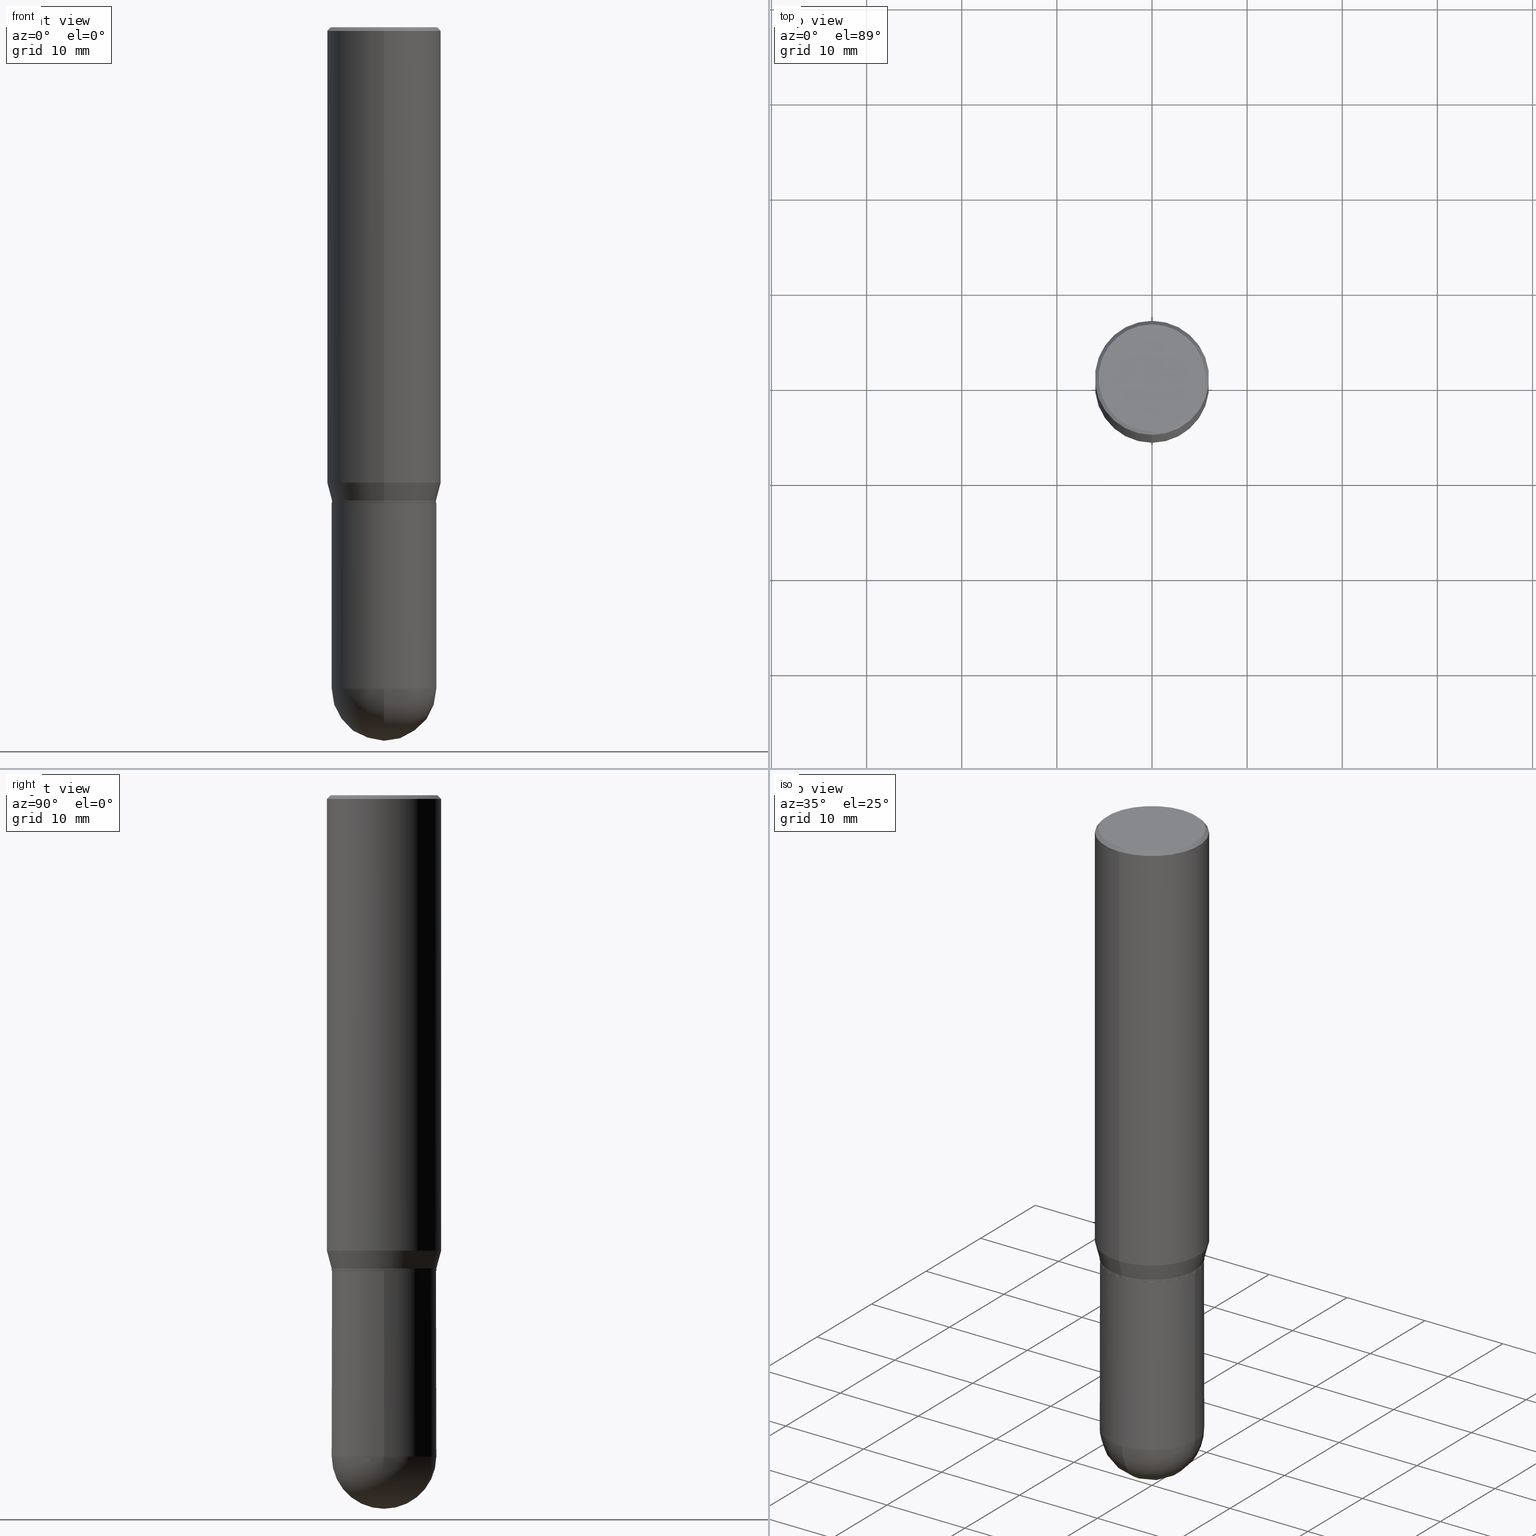
[diagram: canonical four-view strip — front | top / right | iso, engineering-drawing reading convention]
A machine part, canonical four-view strip (front | top / right | iso — engineering-drawing reading convention). The complete STEP part file that produces these views, byte-faithful:
ISO-10303-21;
HEADER;
FILE_DESCRIPTION (( 'STEP AP203' ),
    '1' );
FILE_NAME ('48856.STEP',
    '2024-03-08T13:30:38',
    ( '' ),
    ( '' ),
    'SwSTEP 2.0',
    'SolidWorks 2023',
    '' );
FILE_SCHEMA (( 'CONFIG_CONTROL_DESIGN' ));
ENDSEC;

DATA;
#1 = CLOSED_SHELL ( 'NONE', ( #506, #394, #476, #226, #5, #94, #469, #38, #497, #153, #324, #194 ) ) ;
#2 = VECTOR ( 'NONE', #206, 39.37007874015748143 ) ;
#3 = ORIENTED_EDGE ( 'NONE', *, *, #207, .F. ) ;
#4 = DIRECTION ( 'NONE',  ( -2.445468806185136597E-29, 3.491481338843145583E-15, 1.000000000000000000 ) ) ;
#5 = ADVANCED_FACE ( 'NONE', ( #402 ), #501, .T. ) ;
#6 = PLANE ( 'NONE',  #420 ) ;
#7 = DIRECTION ( 'NONE',  ( -6.982962677686265922E-15, -1.000000000000000000, 3.491486196128866815E-15 ) ) ;
#8 = ORIENTED_EDGE ( 'NONE', *, *, #216, .T. ) ;
#9 = VERTEX_POINT ( 'NONE', #294 ) ;
#10 = FACE_OUTER_BOUND ( 'NONE', #108, .T. ) ;
#11 = LENGTH_MEASURE_WITH_UNIT ( LENGTH_MEASURE( 0.02539999999999999897 ), #439 );
#12 = CIRCLE ( 'NONE', #140, 0.2165499999999996594 ) ;
#13 = SECURITY_CLASSIFICATION ( '', '', #399 ) ;
#14 = ORIENTED_EDGE ( 'NONE', *, *, #80, .F. ) ;
#15 = DIRECTION ( 'NONE',  ( -2.445465414360645907E-29, 3.491486196128866815E-15, 1.000000000000000000 ) ) ;
#16 = DIRECTION ( 'NONE',  ( 1.000000000000000000, 0.000000000000000000, 0.000000000000000000 ) ) ;
#17 = CARTESIAN_POINT ( 'NONE',  ( 1.678301941865402543E-15, 0.2361999999999934430, -1.885165201631271215 ) ) ;
#18 = ORIENTED_EDGE ( 'NONE', *, *, #510, .F. ) ;
#19 = COORDINATED_UNIVERSAL_TIME_OFFSET ( 5, 0, .BEHIND. ) ;
#20 = AXIS2_PLACEMENT_3D ( 'NONE', #67, #493, #300 ) ;
#21 = LOCAL_TIME ( 8, 30, 38.00000000000000000, #272 ) ;
#22 = ORIENTED_EDGE ( 'NONE', *, *, #73, .F. ) ;
#23 = EDGE_CURVE ( 'NONE', #502, #340, #56, .T. ) ;
#24 = DIRECTION ( 'NONE',  ( -2.445465414360645907E-29, 3.491486196128866815E-15, 1.000000000000000000 ) ) ;
#25 = ORIENTED_EDGE ( 'NONE', *, *, #389, .F. ) ;
#26 = CALENDAR_DATE ( 2024, 8, 3 ) ;
#27 = DIRECTION ( 'NONE',  ( -6.982962677686265922E-15, -1.000000000000000000, 3.784596620176768566E-15 ) ) ;
#28 = DIRECTION ( 'NONE',  ( 1.000000000000000000, -6.982962677686266711E-15, 4.876176775795935793E-29 ) ) ;
#29 = ORIENTED_EDGE ( 'NONE', *, *, #375, .F. ) ;
#30 = PERSON_AND_ORGANIZATION_ROLE ( 'creator' ) ;
#31 = VERTEX_POINT ( 'NONE', #449 ) ;
#32 = VECTOR ( 'NONE', #238, 39.37007874015748143 ) ;
#33 = ADVANCED_FACE ( 'NONE', ( #178 ), #63, .T. ) ;
#34 = AXIS2_PLACEMENT_3D ( 'NONE', #412, #325, #405 ) ;
#35 = DATE_TIME_ROLE ( 'classification_date' ) ;
#36 = CYLINDRICAL_SURFACE ( 'NONE', #69, 0.2165500000000000480 ) ;
#37 = ORIENTED_EDGE ( 'NONE', *, *, #73, .T. ) ;
#38 = ADVANCED_FACE ( 'NONE', ( #368 ), #341, .T. ) ;
#39 = CARTESIAN_POINT ( 'NONE',  ( 4.813905344975440714E-29, -6.872981015512730918E-15, -1.968499999999999694 ) ) ;
#40 = ORIENTED_EDGE ( 'NONE', *, *, #271, .F. ) ;
#41 = FACE_OUTER_BOUND ( 'NONE', #181, .T. ) ;
#42 = DIRECTION ( 'NONE',  ( -2.445465414360645907E-29, 3.491486196128866815E-15, 1.000000000000000000 ) ) ;
#43 = DIRECTION ( 'NONE',  ( -6.982962677686265922E-15, -1.000000000000000000, 3.784596620176773299E-15 ) ) ;
#44 = EDGE_CURVE ( 'NONE', #237, #9, #458, .T. ) ;
#45 = VECTOR ( 'NONE', #128, 39.37007874015748854 ) ;
#46 = CC_DESIGN_APPROVAL ( #162, ( #82 ) ) ;
#47 = DIRECTION ( 'NONE',  ( 6.982962677686265922E-15, 1.000000000000000000, -3.491486196128866815E-15 ) ) ;
#48 = CARTESIAN_POINT ( 'NONE',  ( 1.678301941865356394E-15, 0.2361999999999999933, -8.246890395256382864E-16 ) ) ;
#49 = DIRECTION ( 'NONE',  ( 2.445465414360645627E-29, -3.491486196128866815E-15, -1.000000000000000000 ) ) ;
#50 = EDGE_LOOP ( 'NONE', ( #362, #250, #242, #418 ) ) ;
#51 = DIRECTION ( 'NONE',  ( -2.445465414360645907E-29, 3.491486196128866815E-15, 1.000000000000000000 ) ) ;
#52 = AXIS2_PLACEMENT_3D ( 'NONE', #169, #217, #327 ) ;
#53 = CC_DESIGN_APPROVAL ( #435, ( #245 ) ) ;
#54 = ADVANCED_FACE ( 'NONE', ( #307 ), #231, .T. ) ;
#55 = ORIENTED_EDGE ( 'NONE', *, *, #23, .F. ) ;
#56 = LINE ( 'NONE', #379, #211 ) ;
#57 = DIRECTION ( 'NONE',  ( -2.445465414360645907E-29, 3.491486196128866815E-15, 1.000000000000000000 ) ) ;
#58 = ORIENTED_EDGE ( 'NONE', *, *, #483, .T. ) ;
#59 = DIRECTION ( 'NONE',  ( 6.982962677686265922E-15, 1.000000000000000000, -2.523064413451176940E-15 ) ) ;
#60 = CARTESIAN_POINT ( 'NONE',  ( -1.508669086514069695E-15, -0.2160500000000068754, -1.968499999999999028 ) ) ;
#61 = ORIENTED_EDGE ( 'NONE', *, *, #123, .T. ) ;
#62 = PERSON_AND_ORGANIZATION_ROLE ( 'design_owner' ) ;
#63 = SPHERICAL_SURFACE ( 'NONE', #383, 0.2165500000000001035 ) ;
#64 = VERTEX_POINT ( 'NONE', #17 ) ;
#65 = EDGE_CURVE ( 'NONE', #184, #502, #454, .T. ) ;
#66 = CIRCLE ( 'NONE', #115, 0.2165499999999999370 ) ;
#67 = CARTESIAN_POINT ( 'NONE',  ( 3.668198121540934967E-31, -5.237229294193252052E-17, -0.01499999999999986067 ) ) ;
#68 = LINE ( 'NONE', #355, #366 ) ;
#69 = AXIS2_PLACEMENT_3D ( 'NONE', #468, #363, #278 ) ;
#70 = ORIENTED_EDGE ( 'NONE', *, *, #375, .T. ) ;
#71 = COORDINATED_UNIVERSAL_TIME_OFFSET ( 5, 0, .BEHIND. ) ;
#72 = ORIENTED_EDGE ( 'NONE', *, *, #172, .F. ) ;
#73 = EDGE_CURVE ( 'NONE', #502, #413, #66, .T. ) ;
#74 = DIRECTION ( 'NONE',  ( -6.982962677686266711E-15, -1.000000000000000000, 3.491486196128867604E-15 ) ) ;
#75 = ORIENTED_EDGE ( 'NONE', *, *, #310, .F. ) ;
#76 = SHAPE_DEFINITION_REPRESENTATION ( #244, #326 ) ;
#77 = VECTOR ( 'NONE', #192, 39.37007874015748143 ) ;
#78 = APPROVAL_DATE_TIME ( #233, #311 ) ;
#79 = DIRECTION ( 'NONE',  ( -2.445468806185136597E-29, 3.491481338843145583E-15, 1.000000000000000000 ) ) ;
#80 = EDGE_CURVE ( 'NONE', #378, #287, #98, .T. ) ;
#81 = AXIS2_PLACEMENT_3D ( 'NONE', #182, #106, #344 ) ;
#82 = PRODUCT_DEFINITION_FORMATION_WITH_SPECIFIED_SOURCE ( 'ANY', '', #197, .NOT_KNOWN. ) ;
#83 = CARTESIAN_POINT ( 'NONE',  ( 4.813898668168931023E-29, -6.872990577079673590E-15, -1.968499999999999694 ) ) ;
#84 = ORIENTED_EDGE ( 'NONE', *, *, #483, .F. ) ;
#85 = MANIFOLD_SOLID_BREP ( 'Body-Move/Copy2[2]', #1 ) ;
#86 = EDGE_CURVE ( 'NONE', #460, #189, #490, .T. ) ;
#87 = FACE_OUTER_BOUND ( 'NONE', #348, .T. ) ;
#88 = VERTEX_POINT ( 'NONE', #411 ) ;
#89 = CC_DESIGN_PERSON_AND_ORGANIZATION_ASSIGNMENT ( #155, #312, ( #13 ) ) ;
#90 = AXIS2_PLACEMENT_3D ( 'NONE', #364, #136, #284 ) ;
#91 = CC_DESIGN_SECURITY_CLASSIFICATION ( #13, ( #82 ) ) ;
#92 = LINE ( 'NONE', #373, #313 ) ;
#93 = CARTESIAN_POINT ( 'NONE',  ( -1.512160567852910730E-15, -0.2165500000000064873, -1.958499999999999019 ) ) ;
#94 = ADVANCED_FACE ( 'NONE', ( #95 ), #296, .T. ) ;
#95 = FACE_OUTER_BOUND ( 'NONE', #139, .T. ) ;
#96 = DIRECTION ( 'NONE',  ( -2.445465414360645907E-29, 3.491486196128866815E-15, 1.000000000000000000 ) ) ;
#97 = CC_DESIGN_DATE_AND_TIME_ASSIGNMENT ( #392, #35, ( #13 ) ) ;
#98 = CIRCLE ( 'NONE', #489, 0.2165500000000001035 ) ;
#99 = CARTESIAN_POINT ( 'NONE',  ( 3.668198121540934967E-31, -5.237229294193252052E-17, -0.01499999999999986067 ) ) ;
#100 = VERTEX_POINT ( 'NONE', #354 ) ;
#101 = EDGE_CURVE ( 'NONE', #88, #9, #92, .T. ) ;
#102 = EDGE_LOOP ( 'NONE', ( #18, #84 ) ) ;
#103 = DIRECTION ( 'NONE',  ( -2.445468806185136597E-29, 3.491481338843145583E-15, 1.000000000000000000 ) ) ;
#104 = PERSON_AND_ORGANIZATION ( #118, #214 ) ;
#105 = VECTOR ( 'NONE', #42, 39.37007874015748143 ) ;
#106 = DIRECTION ( 'NONE',  ( 2.445465414360645907E-29, -3.491486196128866815E-15, -1.000000000000000000 ) ) ;
#107 = LOCAL_TIME ( 8, 30, 38.00000000000000000, #496 ) ;
#108 = EDGE_LOOP ( 'NONE', ( #55, #37, #61, #158 ) ) ;
#109 = CARTESIAN_POINT ( 'NONE',  ( 4.789444014025324956E-29, -6.838075715118385991E-15, -1.958499999999999908 ) ) ;
#110 = DATE_AND_TIME ( #492, #504 ) ;
#111 = DIRECTION ( 'NONE',  ( -2.445468806185136877E-29, 3.491481338843145188E-15, 1.000000000000000000 ) ) ;
#112 = ORIENTED_EDGE ( 'NONE', *, *, #65, .F. ) ;
#113 = DIRECTION ( 'NONE',  ( 6.982962677686265922E-15, 1.000000000000000000, 0.000000000000000000 ) ) ;
#114 = DIRECTION ( 'NONE',  ( -2.445465414360645907E-29, 3.491486196128866815E-15, 1.000000000000000000 ) ) ;
#115 = AXIS2_PLACEMENT_3D ( 'NONE', #422, #227, #27 ) ;
#116 = CIRCLE ( 'NONE', #34, 0.2160500000000000198 ) ;
#117 = CARTESIAN_POINT ( 'NONE',  ( 3.668198121540934967E-31, -5.237229294193252052E-17, -0.01499999999999986067 ) ) ;
#118 = PERSON ( 'UNSPECIFIED', 'UNSPECIFIED', 'UNSPECIFIED', ('UNSPECIFIED'), ('UNSPECIFIED'), ('UNSPECIFIED') ) ;
#119 = EDGE_CURVE ( 'NONE', #247, #413, #168, .T. ) ;
#120 = CARTESIAN_POINT ( 'NONE',  ( -0.2165500000000000480, -6.674593120172645055E-15, -2.736249999999999183 ) ) ;
#121 = ORIENTED_EDGE ( 'NONE', *, *, #86, .T. ) ;
#122 = APPROVAL_STATUS ( 'not_yet_approved' ) ;
#123 = EDGE_CURVE ( 'NONE', #413, #232, #472, .T. ) ;
#124 = DIRECTION ( 'NONE',  ( -2.445465414360645907E-29, 3.491486196128866815E-15, 1.000000000000000000 ) ) ;
#125 = CYLINDRICAL_SURFACE ( 'NONE', #223, 0.2361999999999999933 ) ;
#126 = FACE_OUTER_BOUND ( 'NONE', #102, .T. ) ;
#127 = CARTESIAN_POINT ( 'NONE',  ( 4.813898668168931023E-29, -6.872990577079673590E-15, -1.968499999999999694 ) ) ;
#128 = DIRECTION ( 'NONE',  ( -4.937700262164715281E-15, -0.7071067811865691111, 0.7071067811865257013 ) ) ;
#129 = DIRECTION ( 'NONE',  ( -6.982962677686265922E-15, -1.000000000000000000, 3.793355233044567490E-15 ) ) ;
#130 = ORIENTED_EDGE ( 'NONE', *, *, #343, .T. ) ;
#131 = CIRCLE ( 'NONE', #353, 0.2165500000000001035 ) ;
#132 = CIRCLE ( 'NONE', #196, 0.2160500000000000198 ) ;
#133 = CYLINDRICAL_SURFACE ( 'NONE', #360, 0.2361999999999999933 ) ;
#134 = ORIENTED_EDGE ( 'NONE', *, *, #343, .F. ) ;
#135 = ORIENTED_EDGE ( 'NONE', *, *, #302, .T. ) ;
#136 = DIRECTION ( 'NONE',  ( -2.445465414360645627E-29, 3.491486196128866815E-15, 1.000000000000000000 ) ) ;
#137 = CARTESIAN_POINT ( 'NONE',  ( 0.000000000000000000, 0.000000000000000000, 0.000000000000000000 ) ) ;
#138 = DIRECTION ( 'NONE',  ( -6.982962677686265922E-15, -1.000000000000000000, 3.469747663417777397E-15 ) ) ;
#139 = EDGE_LOOP ( 'NONE', ( #305, #8, #329, #25 ) ) ;
#140 = AXIS2_PLACEMENT_3D ( 'NONE', #109, #499, #503 ) ;
#141 = EDGE_CURVE ( 'NONE', #480, #88, #434, .T. ) ;
#142 = CALENDAR_DATE ( 2024, 8, 3 ) ;
#143 = AXIS2_PLACEMENT_3D ( 'NONE', #319, #275, #317 ) ;
#144 = ORIENTED_EDGE ( 'NONE', *, *, #429, .F. ) ;
#145 = APPROVAL_ROLE ( '' ) ;
#146 = LINE ( 'NONE', #453, #151 ) ;
#147 = ORIENTED_EDGE ( 'NONE', *, *, #44, .F. ) ;
#148 = APPROVAL_DATE_TIME ( #266, #435 ) ;
#149 = ORIENTED_EDGE ( 'NONE', *, *, #310, .T. ) ;
#150 = DIRECTION ( 'NONE',  ( 0.000000000000000000, 0.000000000000000000, 1.000000000000000000 ) ) ;
#151 = VECTOR ( 'NONE', #111, 39.37007874015748143 ) ;
#152 = ORIENTED_EDGE ( 'NONE', *, *, #119, .F. ) ;
#153 = ADVANCED_FACE ( 'NONE', ( #126 ), #481, .F. ) ;
#154 = CARTESIAN_POINT ( 'NONE',  ( 7.211720977907380015E-29, -1.032290596055380666E-14, -2.952799999999999869 ) ) ;
#155 = PERSON_AND_ORGANIZATION ( #118, #214 ) ;
#156 = CC_DESIGN_PERSON_AND_ORGANIZATION_ASSIGNMENT ( #306, #30, ( #82 ) ) ;
#157 = AXIS2_PLACEMENT_3D ( 'NONE', #474, #51, #43 ) ;
#158 = ORIENTED_EDGE ( 'NONE', *, *, #216, .F. ) ;
#159 = CARTESIAN_POINT ( 'NONE',  ( -1.512160567852911913E-15, -0.2165500000000067371, -1.967999999999999083 ) ) ;
#160 = FACE_OUTER_BOUND ( 'NONE', #346, .T. ) ;
#161 = ORIENTED_EDGE ( 'NONE', *, *, #410, .T. ) ;
#162 = APPROVAL ( #421, 'UNSPECIFIED' ) ;
#163 = CARTESIAN_POINT ( 'NONE',  ( 6.691414020924076964E-29, -9.553565813409554172E-15, -2.736249999999999183 ) ) ;
#164 = CIRCLE ( 'NONE', #205, 0.2165499999999996594 ) ;
#165 = EDGE_LOOP ( 'NONE', ( #428, #452, #161, #281 ) ) ;
#166 = CONICAL_SURFACE ( 'NONE', #463, 0.2160500000000000198, 0.7853981633974824739 ) ;
#167 = APPLICATION_PROTOCOL_DEFINITION ( 'international standard', 'config_control_design', 1994, #248 ) ;
#168 = LINE ( 'NONE', #320, #45 ) ;
#169 = CARTESIAN_POINT ( 'NONE',  ( 6.691414020924076964E-29, -9.553565813409554172E-15, -2.736249999999999183 ) ) ;
#170 = CYLINDRICAL_SURFACE ( 'NONE', #241, 0.2165499999999997982 ) ;
#171 =( CONVERSION_BASED_UNIT ( 'INCH', #11 ) LENGTH_UNIT ( ) NAMED_UNIT ( #484 ) );
#172 = EDGE_CURVE ( 'NONE', #31, #337, #441, .T. ) ;
#173 = CIRCLE ( 'NONE', #459, 0.2165500000000000480 ) ;
#174 = DIRECTION ( 'NONE',  ( -2.445465414360645907E-29, 3.491486196128866815E-15, 1.000000000000000000 ) ) ;
#175 = AXIS2_PLACEMENT_3D ( 'NONE', #291, #150, #16 ) ;
#176 =( NAMED_UNIT ( * ) PLANE_ANGLE_UNIT ( ) SI_UNIT ( $, .RADIAN. ) );
#177 = EDGE_LOOP ( 'NONE', ( #112, #58, #498, #22 ) ) ;
#178 = FACE_OUTER_BOUND ( 'NONE', #270, .T. ) ;
#179 = PERSON_AND_ORGANIZATION ( #118, #214 ) ;
#180 = CARTESIAN_POINT ( 'NONE',  ( 6.672895394931898871E-29, -9.580085539845092024E-15, -2.736249999999999627 ) ) ;
#181 = EDGE_LOOP ( 'NONE', ( #199, #228 ) ) ;
#182 = CARTESIAN_POINT ( 'NONE',  ( 3.668198121540934967E-31, -5.237229294193252052E-17, -0.01499999999999986067 ) ) ;
#183 = CARTESIAN_POINT ( 'NONE',  ( 4.812675935461751280E-29, -6.871244833981608894E-15, -1.967999999999999972 ) ) ;
#184 = VERTEX_POINT ( 'NONE', #286 ) ;
#185 = CARTESIAN_POINT ( 'NONE',  ( 6.672895394931898871E-29, -9.580085539845092024E-15, -2.736249999999999627 ) ) ;
#186 = DIRECTION ( 'NONE',  ( -6.982962677686265922E-15, -1.000000000000000000, 3.491486196128866420E-15 ) ) ;
#187 = DIRECTION ( 'NONE',  ( -1.000000000000000000, 7.105427357601001070E-15, -4.926315508542082329E-29 ) ) ;
#188 = EDGE_CURVE ( 'NONE', #64, #237, #440, .T. ) ;
#189 = VERTEX_POINT ( 'NONE', #370 ) ;
#190 = APPROVAL_ROLE ( '' ) ;
#191 = DIRECTION ( 'NONE',  ( -7.105427357601001070E-15, -1.000000000000000000, 0.000000000000000000 ) ) ;
#192 = DIRECTION ( 'NONE',  ( 1.839019923739599921E-15, 0.2588190451025249028, 0.9659258262890670910 ) ) ;
#193 = LINE ( 'NONE', #361, #395 ) ;
#194 = ADVANCED_FACE ( 'NONE', ( #10 ), #170, .T. ) ;
#195 = CONICAL_SURFACE ( 'NONE', #478, 0.2160500000000000198, 0.7853981633974824739 ) ;
#196 = AXIS2_PLACEMENT_3D ( 'NONE', #127, #208, #129 ) ;
#197 = PRODUCT ( '48856', '48856', '', ( #488 ) ) ;
#198 = DIRECTION ( 'NONE',  ( 1.000000000000000000, -6.982962677686263555E-15, 0.000000000000000000 ) ) ;
#199 = ORIENTED_EDGE ( 'NONE', *, *, #429, .T. ) ;
#200 = APPROVAL_ROLE ( '' ) ;
#201 = DIRECTION ( 'NONE',  ( -1.000000000000000000, 6.982962677686265922E-15, -4.876176775795935793E-29 ) ) ;
#202 = CARTESIAN_POINT ( 'NONE',  ( 4.789444014025324956E-29, -6.838075715118385991E-15, -1.958499999999999908 ) ) ;
#203 = CARTESIAN_POINT ( 'NONE',  ( -3.381114317021096845E-45, 4.827348567715985194E-31, 1.382605657461351378E-16 ) ) ;
#204 = DIRECTION ( 'NONE',  ( -2.445465414360645907E-29, 3.491486196128866815E-15, 1.000000000000000000 ) ) ;
#205 = AXIS2_PLACEMENT_3D ( 'NONE', #229, #387, #433 ) ;
#206 = DIRECTION ( 'NONE',  ( -2.445465414360645907E-29, 3.491486196128866815E-15, 1.000000000000000000 ) ) ;
#207 = EDGE_CURVE ( 'NONE', #232, #340, #12, .T. ) ;
#208 = DIRECTION ( 'NONE',  ( -2.445465414360645907E-29, 3.491486196128866815E-15, 1.000000000000000000 ) ) ;
#209 = ORIENTED_EDGE ( 'NONE', *, *, #86, .F. ) ;
#210 = CARTESIAN_POINT ( 'NONE',  ( 1.538680294288542061E-15, 0.2165499999999928316, -1.958500000000000796 ) ) ;
#211 = VECTOR ( 'NONE', #15, 39.37007874015748143 ) ;
#212 = CIRCLE ( 'NONE', #243, 0.2361999999999999933 ) ;
#213 = ORIENTED_EDGE ( 'NONE', *, *, #23, .T. ) ;
#214 = ORGANIZATION ( 'UNSPECIFIED', 'UNSPECIFIED', '' ) ;
#215 = ORIENTED_EDGE ( 'NONE', *, *, #80, .T. ) ;
#216 = EDGE_CURVE ( 'NONE', #340, #232, #164, .T. ) ;
#217 = DIRECTION ( 'NONE',  ( -2.445468806185136597E-29, 3.491481338843145583E-15, 1.000000000000000000 ) ) ;
#218 = ORIENTED_EDGE ( 'NONE', *, *, #141, .T. ) ;
#219 = PERSON_AND_ORGANIZATION_ROLE ( 'creator' ) ;
#220 = DIRECTION ( 'NONE',  ( -1.000000000000000000, 6.982962677686265922E-15, -4.883557194083112340E-29 ) ) ;
#221 = FACE_OUTER_BOUND ( 'NONE', #398, .T. ) ;
#222 = ORIENTED_EDGE ( 'NONE', *, *, #302, .F. ) ;
#223 = AXIS2_PLACEMENT_3D ( 'NONE', #137, #254, #7 ) ;
#224 = DIRECTION ( 'NONE',  ( -2.445465414360645907E-29, 3.491486196128866815E-15, 1.000000000000000000 ) ) ;
#225 = ORIENTED_EDGE ( 'NONE', *, *, #65, .T. ) ;
#226 = ADVANCED_FACE ( 'NONE', ( #403 ), #125, .T. ) ;
#227 = DIRECTION ( 'NONE',  ( -2.445465414360645907E-29, 3.491486196128866815E-15, 1.000000000000000000 ) ) ;
#228 = ORIENTED_EDGE ( 'NONE', *, *, #447, .T. ) ;
#229 = CARTESIAN_POINT ( 'NONE',  ( 4.789444014025324956E-29, -6.838075715118385991E-15, -1.958499999999999908 ) ) ;
#230 = DATE_TIME_ROLE ( 'creation_date' ) ;
#231 = SPHERICAL_SURFACE ( 'NONE', #358, 0.2165500000000001035 ) ;
#232 = VERTEX_POINT ( 'NONE', #93 ) ;
#233 = DATE_AND_TIME ( #357, #21 ) ;
#234 = AXIS2_PLACEMENT_3D ( 'NONE', #99, #365, #473 ) ;
#235 = CARTESIAN_POINT ( 'NONE',  ( -1.538680294288430240E-15, -0.2165500000000096792, -2.736249999999998295 ) ) ;
#236 = EDGE_CURVE ( 'NONE', #100, #64, #280, .T. ) ;
#237 = VERTEX_POINT ( 'NONE', #260 ) ;
#238 = DIRECTION ( 'NONE',  ( -2.445468806185136877E-29, 3.491481338843145188E-15, 1.000000000000000000 ) ) ;
#239 = FACE_OUTER_BOUND ( 'NONE', #347, .T. ) ;
#240 = LINE ( 'NONE', #471, #342 ) ;
#241 = AXIS2_PLACEMENT_3D ( 'NONE', #328, #289, #186 ) ;
#242 = ORIENTED_EDGE ( 'NONE', *, *, #461, .T. ) ;
#243 = AXIS2_PLACEMENT_3D ( 'NONE', #464, #509, #321 ) ;
#244 = PRODUCT_DEFINITION_SHAPE ( 'NONE', 'NONE',  #245 ) ;
#245 = PRODUCT_DEFINITION ( 'UNKNOWN', '', #82, #335 ) ;
#246 = DIRECTION ( 'NONE',  ( -6.982962677686265922E-15, -1.000000000000000000, 3.793355233044567490E-15 ) ) ;
#247 = VERTEX_POINT ( 'NONE', #60 ) ;
#248 = APPLICATION_CONTEXT ( 'configuration controlled 3d designs of mechanical parts and assemblies' ) ;
#249 = AXIS2_PLACEMENT_3D ( 'NONE', #202, #124, #283 ) ;
#250 = ORIENTED_EDGE ( 'NONE', *, *, #141, .F. ) ;
#251 = CC_DESIGN_PERSON_AND_ORGANIZATION_ASSIGNMENT ( #451, #219, ( #245 ) ) ;
#252 = AXIS2_PLACEMENT_3D ( 'NONE', #39, #356, #465 ) ;
#253 = DIRECTION ( 'NONE',  ( -4.851104656540965064E-15, -0.7071067811865501263, -0.7071067811865449082 ) ) ;
#254 = DIRECTION ( 'NONE',  ( -2.445465414360645907E-29, 3.491486196128866815E-15, 1.000000000000000000 ) ) ;
#255 = CC_DESIGN_DATE_AND_TIME_ASSIGNMENT ( #110, #230, ( #245 ) ) ;
#256 = CARTESIAN_POINT ( 'NONE',  ( 1.544631344304201972E-15, 0.2211999999999999800, -7.031864637106377532E-16 ) ) ;
#257 = CARTESIAN_POINT ( 'NONE',  ( 4.610106300945484594E-29, -6.582028278918073028E-15, -1.885165201631270548 ) ) ;
#258 = ORIENTED_EDGE ( 'NONE', *, *, #510, .T. ) ;
#259 = AXIS2_PLACEMENT_3D ( 'NONE', #455, #103, #301 ) ;
#260 = CARTESIAN_POINT ( 'NONE',  ( 1.678301941865403134E-15, 0.2361999999999999655, -0.01500000000000068466 ) ) ;
#261 = PERSON_AND_ORGANIZATION ( #118, #214 ) ;
#262 = DIRECTION ( 'NONE',  ( -2.445465414360645907E-29, 3.491486196128866815E-15, 1.000000000000000000 ) ) ;
#263 = MANIFOLD_SOLID_BREP ( 'Body-Move/Copy2[1]', #456 ) ;
#264 = APPLICATION_CONTEXT ( 'configuration controlled 3d designs of mechanical parts and assemblies' ) ;
#265 = CARTESIAN_POINT ( 'NONE',  ( 1.512160567853028073E-15, 0.2165499999999904723, -2.736249999999999627 ) ) ;
#266 = DATE_AND_TIME ( #142, #107 ) ;
#267 = APPROVAL_PERSON_ORGANIZATION ( #104, #162, #145 ) ;
#268 = DIRECTION ( 'NONE',  ( 5.024295867788231995E-15, 0.7071067811865739960, 0.7071067811865208164 ) ) ;
#269 = ORIENTED_EDGE ( 'NONE', *, *, #123, .F. ) ;
#270 = EDGE_LOOP ( 'NONE', ( #466, #215, #29, #222 ) ) ;
#271 = EDGE_CURVE ( 'NONE', #287, #31, #507, .T. ) ;
#272 = COORDINATED_UNIVERSAL_TIME_OFFSET ( 5, 0, .BEHIND. ) ;
#273 = VECTOR ( 'NONE', #268, 39.37007874015748854 ) ;
#274 = LOCAL_TIME ( 8, 30, 38.00000000000000000, #71 ) ;
#275 = DIRECTION ( 'NONE',  ( -2.445468806185136597E-29, 3.491481338843145583E-15, 1.000000000000000000 ) ) ;
#276 = PERSON_AND_ORGANIZATION_ROLE ( 'design_supplier' ) ;
#277 = CARTESIAN_POINT ( 'NONE',  ( 1.512160567853008943E-15, 0.2165499999999931369, -1.968500000000000583 ) ) ;
#278 = DIRECTION ( 'NONE',  ( 1.000000000000000000, -6.982962677686266711E-15, 4.876176775795935793E-29 ) ) ;
#279 = EDGE_CURVE ( 'NONE', #340, #64, #409, .T. ) ;
#280 = CIRCLE ( 'NONE', #470, 0.2361999999999999933 ) ;
#281 = ORIENTED_EDGE ( 'NONE', *, *, #461, .F. ) ;
#282 = DIRECTION ( 'NONE',  ( 4.937700262164548831E-15, 0.7071067811865452413, -0.7071067811865497932 ) ) ;
#283 = DIRECTION ( 'NONE',  ( -6.982962677686265922E-15, -1.000000000000000000, 3.784596620176773299E-15 ) ) ;
#284 = DIRECTION ( 'NONE',  ( -6.982962677686265922E-15, -1.000000000000000000, 3.491486196128866815E-15 ) ) ;
#285 = EDGE_CURVE ( 'NONE', #378, #337, #131, .T. ) ;
#286 = CARTESIAN_POINT ( 'NONE',  ( 1.536903937449144373E-15, 0.2160499999999931364, -1.968500000000000583 ) ) ;
#287 = VERTEX_POINT ( 'NONE', #235 ) ;
#288 = CONICAL_SURFACE ( 'NONE', #234, 0.2361999999999999933, 0.7853981633974485010 ) ;
#289 = DIRECTION ( 'NONE',  ( -2.445465414360645907E-29, 3.491486196128866815E-15, 1.000000000000000000 ) ) ;
#290 = DIRECTION ( 'NONE',  ( -6.982962677686265922E-15, -1.000000000000000000, 3.491486196128866815E-15 ) ) ;
#291 = CARTESIAN_POINT ( 'NONE',  ( 0.000000000000000000, 0.000000000000000000, 0.000000000000000000 ) ) ;
#292 = CC_DESIGN_PERSON_AND_ORGANIZATION_ASSIGNMENT ( #261, #62, ( #197 ) ) ;
#293 =( NAMED_UNIT ( * ) SI_UNIT ( $, .STERADIAN. ) SOLID_ANGLE_UNIT ( ) );
#294 = CARTESIAN_POINT ( 'NONE',  ( -1.649375784469495539E-15, -0.2362000000000000766, -0.01499999999999903667 ) ) ;
#295 = EDGE_LOOP ( 'NONE', ( #332, #423, #382, #477 ) ) ;
#296 = CONICAL_SURFACE ( 'NONE', #157, 0.2165499999999996594, 0.2617993877991502405 ) ;
#297 =( GEOMETRIC_REPRESENTATION_CONTEXT ( 3 ) GLOBAL_UNCERTAINTY_ASSIGNED_CONTEXT ( ( #446 ) ) GLOBAL_UNIT_ASSIGNED_CONTEXT ( ( #171, #176, #293 ) ) REPRESENTATION_CONTEXT ( 'NONE', 'WORKASPACE' ) );
#298 = APPLICATION_PROTOCOL_DEFINITION ( 'international standard', 'config_control_design', 1994, #264 ) ;
#299 = ORIENTED_EDGE ( 'NONE', *, *, #172, .T. ) ;
#300 = DIRECTION ( 'NONE',  ( -6.982962677686265922E-15, -1.000000000000000000, 3.487819265831411744E-15 ) ) ;
#301 = DIRECTION ( 'NONE',  ( 1.000000000000000000, -6.982962677686263555E-15, 0.000000000000000000 ) ) ;
#302 = EDGE_CURVE ( 'NONE', #337, #460, #414, .T. ) ;
#303 = EDGE_LOOP ( 'NONE', ( #495, #386, #486, #134 ) ) ;
#304 = DIRECTION ( 'NONE',  ( -1.000000000000000000, 6.982962677686265922E-15, -4.883557194083112340E-29 ) ) ;
#305 = ORIENTED_EDGE ( 'NONE', *, *, #279, .F. ) ;
#306 = PERSON_AND_ORGANIZATION ( #118, #214 ) ;
#307 = FACE_OUTER_BOUND ( 'NONE', #372, .T. ) ;
#308 = CARTESIAN_POINT ( 'NONE',  ( 4.813898668168931023E-29, -6.872990577079673590E-15, -1.968499999999999694 ) ) ;
#309 = ORIENTED_EDGE ( 'NONE', *, *, #285, .T. ) ;
#310 = EDGE_CURVE ( 'NONE', #413, #502, #322, .T. ) ;
#311 = APPROVAL ( #122, 'UNSPECIFIED' ) ;
#312 = PERSON_AND_ORGANIZATION_ROLE ( 'classification_officer' ) ;
#313 = VECTOR ( 'NONE', #253, 39.37007874015748143 ) ;
#314 = CC_DESIGN_APPROVAL ( #311, ( #13 ) ) ;
#315 = ORIENTED_EDGE ( 'NONE', *, *, #188, .F. ) ;
#316 = CALENDAR_DATE ( 2024, 8, 3 ) ;
#317 = DIRECTION ( 'NONE',  ( 1.000000000000000000, -6.982962677686264344E-15, 0.000000000000000000 ) ) ;
#318 = ADVANCED_FACE ( 'NONE', ( #221 ), #345, .T. ) ;
#319 = CARTESIAN_POINT ( 'NONE',  ( 4.813905344975440714E-29, -6.872981015512730918E-15, -1.968499999999999694 ) ) ;
#320 = CARTESIAN_POINT ( 'NONE',  ( -1.508669086514069695E-15, -0.2160500000000068754, -1.968499999999999028 ) ) ;
#321 = DIRECTION ( 'NONE',  ( -6.982962677686265922E-15, -1.000000000000000000, 3.469747663417777397E-15 ) ) ;
#322 = CIRCLE ( 'NONE', #376, 0.2165499999999999370 ) ;
#323 = CIRCLE ( 'NONE', #407, 0.2361999999999999933 ) ;
#324 = ADVANCED_FACE ( 'NONE', ( #494 ), #195, .T. ) ;
#325 = DIRECTION ( 'NONE',  ( -2.445465414360645907E-29, 3.491486196128866815E-15, 1.000000000000000000 ) ) ;
#326 = ADVANCED_BREP_SHAPE_REPRESENTATION ( '48856', ( #263, #85, #175 ), #297 ) ;
#327 = DIRECTION ( 'NONE',  ( 1.000000000000000000, -6.982962677686263555E-15, 0.000000000000000000 ) ) ;
#328 = CARTESIAN_POINT ( 'NONE',  ( 0.000000000000000000, 0.000000000000000000, 0.000000000000000000 ) ) ;
#329 = ORIENTED_EDGE ( 'NONE', *, *, #359, .T. ) ;
#330 = AXIS2_PLACEMENT_3D ( 'NONE', #384, #24, #74 ) ;
#331 = LOCAL_TIME ( 8, 30, 38.00000000000000000, #430 ) ;
#332 = ORIENTED_EDGE ( 'NONE', *, *, #207, .T. ) ;
#333 = DIRECTION ( 'NONE',  ( -6.982962677686266711E-15, -1.000000000000000000, 3.491486196128867604E-15 ) ) ;
#334 = EDGE_CURVE ( 'NONE', #31, #380, #146, .T. ) ;
#335 = DESIGN_CONTEXT ( 'detailed design', #264, 'design' ) ;
#336 = FACE_OUTER_BOUND ( 'NONE', #165, .T. ) ;
#337 = VERTEX_POINT ( 'NONE', #265 ) ;
#338 = APPROVAL_STATUS ( 'not_yet_approved' ) ;
#339 = CARTESIAN_POINT ( 'NONE',  ( 6.672895394931898871E-29, -9.580085539845092024E-15, -2.736249999999999627 ) ) ;
#340 = VERTEX_POINT ( 'NONE', #425 ) ;
#341 = CONICAL_SURFACE ( 'NONE', #81, 0.2361999999999999933, 0.7853981633974485010 ) ;
#342 = VECTOR ( 'NONE', #282, 39.37007874015748143 ) ;
#343 = EDGE_CURVE ( 'NONE', #100, #9, #68, .T. ) ;
#344 = DIRECTION ( 'NONE',  ( 6.982962677686265922E-15, 1.000000000000000000, -3.487819265831411744E-15 ) ) ;
#345 = CYLINDRICAL_SURFACE ( 'NONE', #419, 0.2165500000000000480 ) ;
#346 = EDGE_LOOP ( 'NONE', ( #258, #225, #75, #152 ) ) ;
#347 = EDGE_LOOP ( 'NONE', ( #209, #70, #450, #371, #404 ) ) ;
#348 = EDGE_LOOP ( 'NONE', ( #315, #487, #130, #147 ) ) ;
#349 = DATE_AND_TIME ( #26, #274 ) ;
#350 = CARTESIAN_POINT ( 'NONE',  ( -0.2165500000000000480, 1.538680294288497294E-15, -1.065195393794700063E-29 ) ) ;
#351 = DIRECTION ( 'NONE',  ( -2.445468806185136597E-29, 3.491481338843145583E-15, 1.000000000000000000 ) ) ;
#352 = EDGE_CURVE ( 'NONE', #88, #480, #426, .T. ) ;
#353 = AXIS2_PLACEMENT_3D ( 'NONE', #416, #491, #113 ) ;
#354 = CARTESIAN_POINT ( 'NONE',  ( -1.649375784469449785E-15, -0.2362000000000065436, -1.885165201631269660 ) ) ;
#355 = CARTESIAN_POINT ( 'NONE',  ( -1.649375784469495934E-15, -0.2361999999999999933, 8.246890395256382864E-16 ) ) ;
#356 = DIRECTION ( 'NONE',  ( -2.445468806185136597E-29, 3.491481338843145583E-15, 1.000000000000000000 ) ) ;
#357 = CALENDAR_DATE ( 2024, 8, 3 ) ;
#358 = AXIS2_PLACEMENT_3D ( 'NONE', #185, #304, #59 ) ;
#359 = EDGE_CURVE ( 'NONE', #232, #100, #193, .T. ) ;
#360 = AXIS2_PLACEMENT_3D ( 'NONE', #374, #204, #290 ) ;
#361 = CARTESIAN_POINT ( 'NONE',  ( -1.512160567852910730E-15, -0.2165500000000064873, -1.958499999999999019 ) ) ;
#362 = ORIENTED_EDGE ( 'NONE', *, *, #101, .F. ) ;
#363 = DIRECTION ( 'NONE',  ( -2.445468806185136597E-29, 3.491481338843145583E-15, 1.000000000000000000 ) ) ;
#364 = CARTESIAN_POINT ( 'NONE',  ( 4.813898668168931023E-29, -6.872990577079673590E-15, -1.968499999999999694 ) ) ;
#365 = DIRECTION ( 'NONE',  ( 2.445465414360645907E-29, -3.491486196128866815E-15, -1.000000000000000000 ) ) ;
#366 = VECTOR ( 'NONE', #224, 39.37007874015748143 ) ;
#367 = AXIS2_PLACEMENT_3D ( 'NONE', #475, #96, #485 ) ;
#368 = FACE_OUTER_BOUND ( 'NONE', #50, .T. ) ;
#369 = CARTESIAN_POINT ( 'NONE',  ( 1.538680294288544822E-15, 0.2165499999999931369, -1.968000000000000638 ) ) ;
#370 = CARTESIAN_POINT ( 'NONE',  ( -0.2165500000000000203, -6.674593120172645055E-15, -1.968499999999999694 ) ) ;
#371 = ORIENTED_EDGE ( 'NONE', *, *, #334, .T. ) ;
#372 = EDGE_LOOP ( 'NONE', ( #14, #309, #72, #40 ) ) ;
#373 = CARTESIAN_POINT ( 'NONE',  ( -1.620449627073635079E-15, -0.2362000000000000766, -0.01499999999999903667 ) ) ;
#374 = CARTESIAN_POINT ( 'NONE',  ( 0.000000000000000000, 0.000000000000000000, 0.000000000000000000 ) ) ;
#375 = EDGE_CURVE ( 'NONE', #460, #287, #173, .T. ) ;
#376 = AXIS2_PLACEMENT_3D ( 'NONE', #183, #262, #385 ) ;
#377 = FACE_OUTER_BOUND ( 'NONE', #442, .T. ) ;
#378 = VERTEX_POINT ( 'NONE', #154 ) ;
#379 = CARTESIAN_POINT ( 'NONE',  ( 1.538680294288495321E-15, 0.2165499999999997982, -7.560813357717053573E-16 ) ) ;
#380 = VERTEX_POINT ( 'NONE', #397 ) ;
#381 = DIRECTION ( 'NONE',  ( 6.982962677686265922E-15, 1.000000000000000000, -2.523064413451176940E-15 ) ) ;
#382 = ORIENTED_EDGE ( 'NONE', *, *, #236, .F. ) ;
#383 = AXIS2_PLACEMENT_3D ( 'NONE', #180, #220, #381 ) ;
#384 = CARTESIAN_POINT ( 'NONE',  ( -3.381114317021096845E-45, 4.827348567715985194E-31, 1.382605657461351378E-16 ) ) ;
#385 = DIRECTION ( 'NONE',  ( -6.982962677686265922E-15, -1.000000000000000000, 3.784596620176768566E-15 ) ) ;
#386 = ORIENTED_EDGE ( 'NONE', *, *, #188, .T. ) ;
#387 = DIRECTION ( 'NONE',  ( -2.445465414360645907E-29, 3.491486196128866815E-15, 1.000000000000000000 ) ) ;
#388 = APPROVAL_DATE_TIME ( #349, #162 ) ;
#389 = EDGE_CURVE ( 'NONE', #64, #100, #212, .T. ) ;
#390 = AXIS2_PLACEMENT_3D ( 'NONE', #438, #4, #444 ) ;
#391 = CIRCLE ( 'NONE', #143, 0.2165500000000000203 ) ;
#392 = DATE_AND_TIME ( #316, #331 ) ;
#393 = DIRECTION ( 'NONE',  ( -2.445465414360645907E-29, 3.491486196128866815E-15, 1.000000000000000000 ) ) ;
#394 = ADVANCED_FACE ( 'NONE', ( #160 ), #166, .T. ) ;
#395 = VECTOR ( 'NONE', #512, 39.37007874015748143 ) ;
#396 = APPROVAL_PERSON_ORGANIZATION ( #467, #311, #200 ) ;
#397 = CARTESIAN_POINT ( 'NONE',  ( 0.2165500000000000203, -8.385141583365692530E-15, -1.968499999999999694 ) ) ;
#398 = EDGE_LOOP ( 'NONE', ( #135, #121, #144, #431, #299 ) ) ;
#399 = SECURITY_CLASSIFICATION_LEVEL ( 'unclassified' ) ;
#400 = DIRECTION ( 'NONE',  ( -2.445465414360645907E-29, 3.491486196128866815E-15, 1.000000000000000000 ) ) ;
#401 = CC_DESIGN_PERSON_AND_ORGANIZATION_ASSIGNMENT ( #505, #276, ( #82 ) ) ;
#402 = FACE_OUTER_BOUND ( 'NONE', #295, .T. ) ;
#403 = FACE_OUTER_BOUND ( 'NONE', #303, .T. ) ;
#404 = ORIENTED_EDGE ( 'NONE', *, *, #447, .F. ) ;
#405 = DIRECTION ( 'NONE',  ( -6.982962677686265922E-15, -1.000000000000000000, 3.793355233044567490E-15 ) ) ;
#406 = AXIS2_PLACEMENT_3D ( 'NONE', #203, #174, #333 ) ;
#407 = AXIS2_PLACEMENT_3D ( 'NONE', #117, #400, #432 ) ;
#408 = CARTESIAN_POINT ( 'NONE',  ( -1.512160567852959442E-15, -0.2165499999999997982, 7.560813357717053573E-16 ) ) ;
#409 = LINE ( 'NONE', #210, #77 ) ;
#410 = EDGE_CURVE ( 'NONE', #9, #237, #323, .T. ) ;
#411 = CARTESIAN_POINT ( 'NONE',  ( -1.568995892090348679E-15, -0.2211999999999999800, 9.105773123298403243E-16 ) ) ;
#412 = CARTESIAN_POINT ( 'NONE',  ( 4.813898668168931023E-29, -6.872990577079673590E-15, -1.968499999999999694 ) ) ;
#413 = VERTEX_POINT ( 'NONE', #159 ) ;
#414 = CIRCLE ( 'NONE', #259, 0.2165500000000000480 ) ;
#415 = CARTESIAN_POINT ( 'NONE',  ( 1.535127580609744318E-15, 0.2160499999999931364, -1.968500000000000583 ) ) ;
#416 = CARTESIAN_POINT ( 'NONE',  ( 6.672895394931898871E-29, -9.580085539845092024E-15, -2.736249999999999627 ) ) ;
#417 = DIRECTION ( 'NONE',  ( -6.982962677686265922E-15, -1.000000000000000000, 3.793355233044567490E-15 ) ) ;
#418 = ORIENTED_EDGE ( 'NONE', *, *, #44, .T. ) ;
#419 = AXIS2_PLACEMENT_3D ( 'NONE', #500, #351, #28 ) ;
#420 = AXIS2_PLACEMENT_3D ( 'NONE', #256, #49, #47 ) ;
#421 = APPROVAL_STATUS ( 'not_yet_approved' ) ;
#422 = CARTESIAN_POINT ( 'NONE',  ( 4.812675935461751280E-29, -6.871244833981608894E-15, -1.967999999999999972 ) ) ;
#423 = ORIENTED_EDGE ( 'NONE', *, *, #279, .T. ) ;
#424 = ADVANCED_FACE ( 'NONE', ( #41 ), #462, .F. ) ;
#425 = CARTESIAN_POINT ( 'NONE',  ( 1.608491118076972302E-15, 0.2165499999999928316, -1.958500000000000796 ) ) ;
#426 = CIRCLE ( 'NONE', #330, 0.2211999999999999800 ) ;
#427 = CIRCLE ( 'NONE', #252, 0.2165500000000000203 ) ;
#428 = ORIENTED_EDGE ( 'NONE', *, *, #352, .F. ) ;
#429 = EDGE_CURVE ( 'NONE', #380, #189, #391, .T. ) ;
#430 = COORDINATED_UNIVERSAL_TIME_OFFSET ( 5, 0, .BEHIND. ) ;
#431 = ORIENTED_EDGE ( 'NONE', *, *, #334, .F. ) ;
#432 = DIRECTION ( 'NONE',  ( -6.982962677686265922E-15, -1.000000000000000000, 3.487819265831411744E-15 ) ) ;
#433 = DIRECTION ( 'NONE',  ( -6.982962677686265922E-15, -1.000000000000000000, 3.784596620176773299E-15 ) ) ;
#434 = CIRCLE ( 'NONE', #406, 0.2211999999999999800 ) ;
#435 = APPROVAL ( #338, 'UNSPECIFIED' ) ;
#436 = AXIS2_PLACEMENT_3D ( 'NONE', #277, #508, #201 ) ;
#437 = PRODUCT_RELATED_PRODUCT_CATEGORY ( 'detail', '', ( #197 ) ) ;
#438 = CARTESIAN_POINT ( 'NONE',  ( 6.691414020924076964E-29, -9.553565813409554172E-15, -2.736249999999999183 ) ) ;
#439 =( LENGTH_UNIT ( ) NAMED_UNIT ( * ) SI_UNIT ( $, .METRE. ) );
#440 = LINE ( 'NONE', #48, #2 ) ;
#441 = CIRCLE ( 'NONE', #390, 0.2165500000000000480 ) ;
#442 = EDGE_LOOP ( 'NONE', ( #218, #511 ) ) ;
#443 = ADVANCED_FACE ( 'NONE', ( #239 ), #36, .T. ) ;
#444 = DIRECTION ( 'NONE',  ( 1.000000000000000000, -6.982962677686263555E-15, 0.000000000000000000 ) ) ;
#445 = CARTESIAN_POINT ( 'NONE',  ( 1.597003564386849249E-15, 0.2211999999999999800, -6.340561808375700980E-16 ) ) ;
#446 = UNCERTAINTY_MEASURE_WITH_UNIT (LENGTH_MEASURE( 1.000000000000000082E-05 ), #171, 'distance_accuracy_value', 'NONE');
#447 = EDGE_CURVE ( 'NONE', #189, #380, #427, .T. ) ;
#448 = CYLINDRICAL_SURFACE ( 'NONE', #367, 0.2165499999999997982 ) ;
#449 = CARTESIAN_POINT ( 'NONE',  ( 0.2165500000000000480, -9.725433982314102974E-15, -2.736249999999999183 ) ) ;
#450 = ORIENTED_EDGE ( 'NONE', *, *, #271, .T. ) ;
#451 = PERSON_AND_ORGANIZATION ( #118, #214 ) ;
#452 = ORIENTED_EDGE ( 'NONE', *, *, #101, .T. ) ;
#453 = CARTESIAN_POINT ( 'NONE',  ( 0.2165500000000000480, -1.512160567852961414E-15, 1.055936080798610176E-29 ) ) ;
#454 = LINE ( 'NONE', #415, #273 ) ;
#455 = CARTESIAN_POINT ( 'NONE',  ( 6.691414020924076964E-29, -9.553565813409554172E-15, -2.736249999999999183 ) ) ;
#456 = CLOSED_SHELL ( 'NONE', ( #318, #33, #424, #54, #443 ) ) ;
#457 = EDGE_LOOP ( 'NONE', ( #149, #213, #3, #269 ) ) ;
#458 = CIRCLE ( 'NONE', #20, 0.2361999999999999933 ) ;
#459 = AXIS2_PLACEMENT_3D ( 'NONE', #163, #79, #198 ) ;
#460 = VERTEX_POINT ( 'NONE', #120 ) ;
#461 = EDGE_CURVE ( 'NONE', #480, #237, #240, .T. ) ;
#462 = PLANE ( 'NONE',  #436 ) ;
#463 = AXIS2_PLACEMENT_3D ( 'NONE', #83, #114, #246 ) ;
#464 = CARTESIAN_POINT ( 'NONE',  ( 4.610106300945484594E-29, -6.582028278918073028E-15, -1.885165201631270548 ) ) ;
#465 = DIRECTION ( 'NONE',  ( 1.000000000000000000, -6.982962677686264344E-15, 0.000000000000000000 ) ) ;
#466 = ORIENTED_EDGE ( 'NONE', *, *, #285, .F. ) ;
#467 = PERSON_AND_ORGANIZATION ( #118, #214 ) ;
#468 = CARTESIAN_POINT ( 'NONE',  ( 0.000000000000000000, 0.000000000000000000, 0.000000000000000000 ) ) ;
#469 = ADVANCED_FACE ( 'NONE', ( #87 ), #133, .T. ) ;
#470 = AXIS2_PLACEMENT_3D ( 'NONE', #257, #57, #138 ) ;
#471 = CARTESIAN_POINT ( 'NONE',  ( 1.649375784469496525E-15, 0.2361999999999999378, -0.01500000000000068466 ) ) ;
#472 = LINE ( 'NONE', #408, #105 ) ;
#473 = DIRECTION ( 'NONE',  ( 6.982962677686265922E-15, 1.000000000000000000, -3.487819265831411744E-15 ) ) ;
#474 = CARTESIAN_POINT ( 'NONE',  ( 4.789444014025324956E-29, -6.838075715118385991E-15, -1.958499999999999908 ) ) ;
#475 = CARTESIAN_POINT ( 'NONE',  ( 0.000000000000000000, 0.000000000000000000, 0.000000000000000000 ) ) ;
#476 = ADVANCED_FACE ( 'NONE', ( #336 ), #288, .T. ) ;
#477 = ORIENTED_EDGE ( 'NONE', *, *, #359, .F. ) ;
#478 = AXIS2_PLACEMENT_3D ( 'NONE', #308, #393, #417 ) ;
#479 = APPROVAL_PERSON_ORGANIZATION ( #179, #435, #190 ) ;
#480 = VERTEX_POINT ( 'NONE', #445 ) ;
#481 = PLANE ( 'NONE',  #90 ) ;
#482 = FACE_OUTER_BOUND ( 'NONE', #457, .T. ) ;
#483 = EDGE_CURVE ( 'NONE', #184, #247, #116, .T. ) ;
#484 = DIMENSIONAL_EXPONENTS ( 1.000000000000000000, 0.000000000000000000, 0.000000000000000000, 0.000000000000000000, 0.000000000000000000, 0.000000000000000000, 0.000000000000000000 ) ;
#485 = DIRECTION ( 'NONE',  ( -6.982962677686265922E-15, -1.000000000000000000, 3.491486196128866420E-15 ) ) ;
#486 = ORIENTED_EDGE ( 'NONE', *, *, #410, .F. ) ;
#487 = ORIENTED_EDGE ( 'NONE', *, *, #389, .T. ) ;
#488 = MECHANICAL_CONTEXT ( 'NONE', #248, 'mechanical' ) ;
#489 = AXIS2_PLACEMENT_3D ( 'NONE', #339, #187, #191 ) ;
#490 = LINE ( 'NONE', #350, #32 ) ;
#491 = DIRECTION ( 'NONE',  ( 1.000000000000000000, -6.982962677686265922E-15, 4.883557194083112340E-29 ) ) ;
#492 = CALENDAR_DATE ( 2024, 8, 3 ) ;
#493 = DIRECTION ( 'NONE',  ( -2.445465414360645907E-29, 3.491486196128866815E-15, 1.000000000000000000 ) ) ;
#494 = FACE_OUTER_BOUND ( 'NONE', #177, .T. ) ;
#495 = ORIENTED_EDGE ( 'NONE', *, *, #236, .T. ) ;
#496 = COORDINATED_UNIVERSAL_TIME_OFFSET ( 5, 0, .BEHIND. ) ;
#497 = ADVANCED_FACE ( 'NONE', ( #377 ), #6, .F. ) ;
#498 = ORIENTED_EDGE ( 'NONE', *, *, #119, .T. ) ;
#499 = DIRECTION ( 'NONE',  ( -2.445465414360645907E-29, 3.491486196128866815E-15, 1.000000000000000000 ) ) ;
#500 = CARTESIAN_POINT ( 'NONE',  ( 0.000000000000000000, 0.000000000000000000, 0.000000000000000000 ) ) ;
#501 = CONICAL_SURFACE ( 'NONE', #249, 0.2165499999999996594, 0.2617993877991502405 ) ;
#502 = VERTEX_POINT ( 'NONE', #369 ) ;
#503 = DIRECTION ( 'NONE',  ( -6.982962677686265922E-15, -1.000000000000000000, 3.784596620176773299E-15 ) ) ;
#504 = LOCAL_TIME ( 8, 30, 38.00000000000000000, #19 ) ;
#505 = PERSON_AND_ORGANIZATION ( #118, #214 ) ;
#506 = ADVANCED_FACE ( 'NONE', ( #482 ), #448, .T. ) ;
#507 = CIRCLE ( 'NONE', #52, 0.2165500000000000480 ) ;
#508 = DIRECTION ( 'NONE',  ( 2.438088387897960049E-29, -3.491481338843145188E-15, -1.000000000000000000 ) ) ;
#509 = DIRECTION ( 'NONE',  ( -2.445465414360645907E-29, 3.491486196128866815E-15, 1.000000000000000000 ) ) ;
#510 = EDGE_CURVE ( 'NONE', #247, #184, #132, .T. ) ;
#511 = ORIENTED_EDGE ( 'NONE', *, *, #352, .T. ) ;
#512 = DIRECTION ( 'NONE',  ( -1.807323732225329745E-15, -0.2588190451025181305, 0.9659258262890689783 ) ) ;
ENDSEC;
END-ISO-10303-21;
